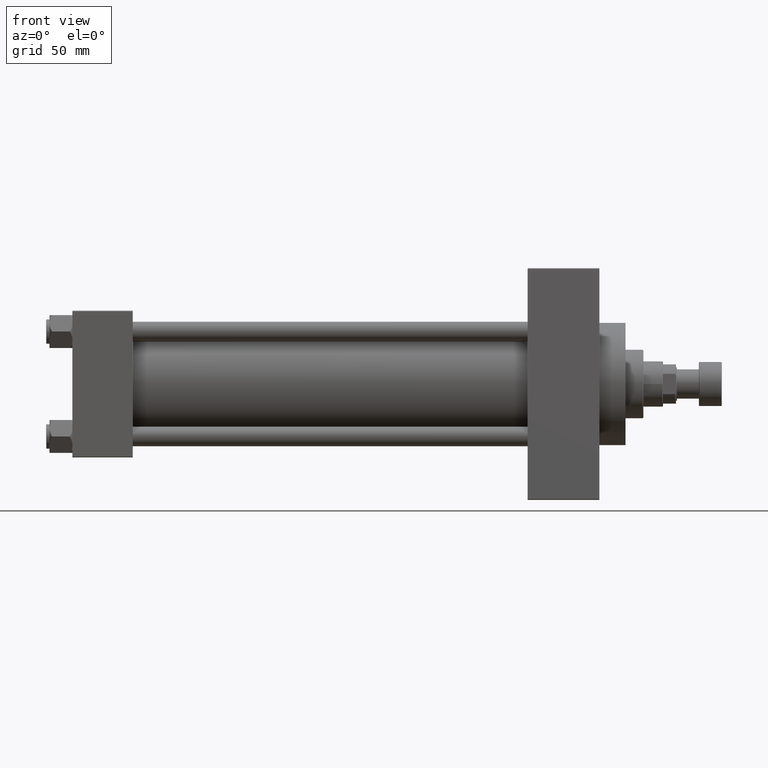
[diagram: clean part render]
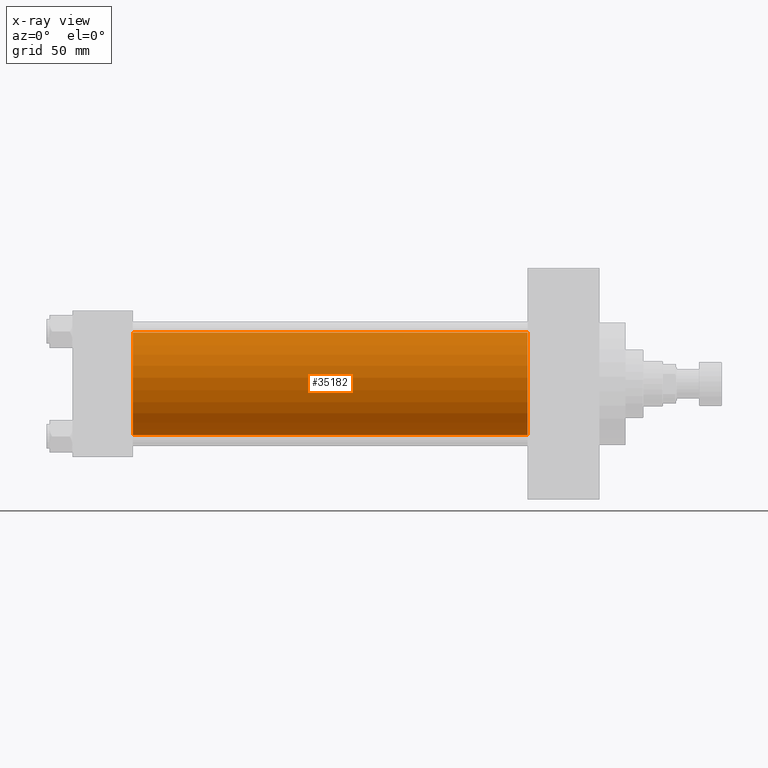
[diagram: x-ray — body ghosted, one internal face saturated and labeled with its STEP entity id]
A machine part, front view, then the same camera in x-ray: the body is ghosted and one INTERNAL B-rep face — a face not visible from any outside direction — is saturated and labeled: STEP entity #35182.
In plain terms, the highlighted cylindrical surface (partial cylindrical patch) has radius 31.5 mm, axis along (-1, -0, -0).
Its self-contained STEP definition (entity closure, byte-faithful):
#2270 = CARTESIAN_POINT ( 'NONE',  ( 278.9999999999999432, -2.602085213965210642E-15, 31.50000000000000000 ) ) ;
#2604 = CIRCLE ( 'NONE', #24291, 31.50000000000000000 ) ;
#3354 = CARTESIAN_POINT ( 'NONE',  ( 278.9999999999999432, 1.255552203348951850E-15, -31.50000000000000000 ) ) ;
#5065 = CARTESIAN_POINT ( 'NONE',  ( 278.9999999999999432, -2.602085213965210642E-15, 31.50000000000000000 ) ) ;
#5314 = DIRECTION ( 'NONE',  ( -1.000000000000000000, -0.000000000000000000, -0.000000000000000000 ) ) ;
#6161 = CARTESIAN_POINT ( 'NONE',  ( 278.9999999999999432, 1.255552203348951850E-15, -31.50000000000000000 ) ) ;
#8165 = FACE_OUTER_BOUND ( 'NONE', #21900, .T. ) ;
#10115 = AXIS2_PLACEMENT_3D ( 'NONE', #38126, #22984, #30301 ) ;
#11441 = CYLINDRICAL_SURFACE ( 'NONE', #10115, 31.50000000000000000 ) ;
#12854 = LINE ( 'NONE', #5065, #32099 ) ;
#13154 = DIRECTION ( 'NONE',  ( 1.000000000000000000, 0.000000000000000000, 0.000000000000000000 ) ) ;
#13438 = EDGE_CURVE ( 'NONE', #32148, #30458, #2604, .T. ) ;
#13590 = ORIENTED_EDGE ( 'NONE', *, *, #32721, .T. ) ;
#15176 = ORIENTED_EDGE ( 'NONE', *, *, #13438, .F. ) ;
#18949 = CARTESIAN_POINT ( 'NONE',  ( 37.00000000000000000, 1.255552203348951850E-15, -31.50000000000000000 ) ) ;
#19683 = DIRECTION ( 'NONE',  ( 0.000000000000000000, 0.000000000000000000, -1.000000000000000000 ) ) ;
#21900 = EDGE_LOOP ( 'NONE', ( #47216, #13590, #15176, #37428 ) ) ;
#22984 = DIRECTION ( 'NONE',  ( -1.000000000000000000, -0.000000000000000000, -0.000000000000000000 ) ) ;
#23065 = DIRECTION ( 'NONE',  ( 0.000000000000000000, 0.000000000000000000, -1.000000000000000000 ) ) ;
#24291 = AXIS2_PLACEMENT_3D ( 'NONE', #27217, #35559, #19683 ) ;
#25983 = LINE ( 'NONE', #6161, #37370 ) ;
#27217 = CARTESIAN_POINT ( 'NONE',  ( 37.00000000000000000, -2.602085213965210642E-15, 0.000000000000000000 ) ) ;
#28080 = CIRCLE ( 'NONE', #46575, 31.50000000000000000 ) ;
#28439 = VERTEX_POINT ( 'NONE', #3354 ) ;
#29284 = DIRECTION ( 'NONE',  ( -1.000000000000000000, -0.000000000000000000, -0.000000000000000000 ) ) ;
#30301 = DIRECTION ( 'NONE',  ( 0.000000000000000000, 0.000000000000000000, 1.000000000000000000 ) ) ;
#30458 = VERTEX_POINT ( 'NONE', #18949 ) ;
#32099 = VECTOR ( 'NONE', #5314, 1000.000000000000000 ) ;
#32148 = VERTEX_POINT ( 'NONE', #38441 ) ;
#32721 = EDGE_CURVE ( 'NONE', #28439, #30458, #25983, .T. ) ;
#33514 = VERTEX_POINT ( 'NONE', #2270 ) ;
#35182 = ADVANCED_FACE ( 'NONE', ( #8165 ), #11441, .F. ) ;
#35559 = DIRECTION ( 'NONE',  ( 1.000000000000000000, 0.000000000000000000, 0.000000000000000000 ) ) ;
#36054 = CARTESIAN_POINT ( 'NONE',  ( 278.9999999999999432, -2.602085213965210642E-15, 0.000000000000000000 ) ) ;
#37370 = VECTOR ( 'NONE', #29284, 1000.000000000000000 ) ;
#37428 = ORIENTED_EDGE ( 'NONE', *, *, #42101, .F. ) ;
#38126 = CARTESIAN_POINT ( 'NONE',  ( 278.9999999999999432, -2.602085213965210642E-15, 0.000000000000000000 ) ) ;
#38441 = CARTESIAN_POINT ( 'NONE',  ( 37.00000000000000000, -2.602085213965210642E-15, 31.50000000000000000 ) ) ;
#40244 = EDGE_CURVE ( 'NONE', #33514, #28439, #28080, .T. ) ;
#42101 = EDGE_CURVE ( 'NONE', #33514, #32148, #12854, .T. ) ;
#46575 = AXIS2_PLACEMENT_3D ( 'NONE', #36054, #13154, #23065 ) ;
#47216 = ORIENTED_EDGE ( 'NONE', *, *, #40244, .T. ) ;